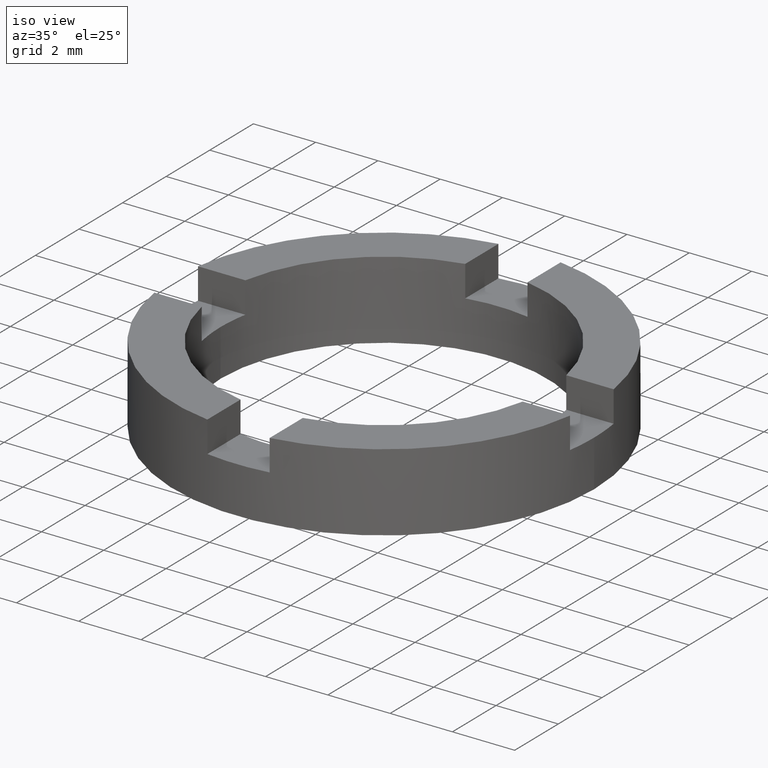
[diagram: clean part render]
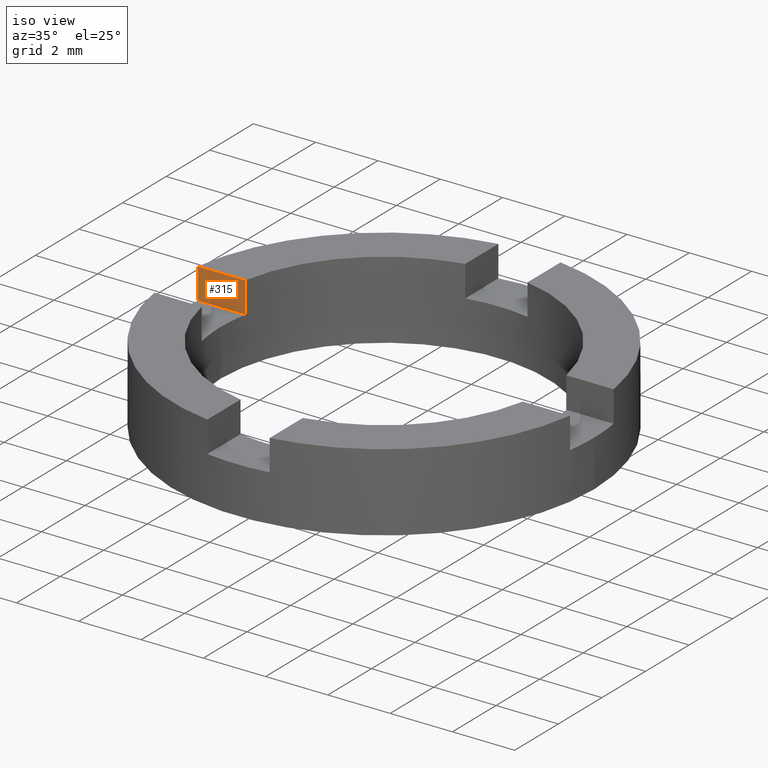
[diagram: same view with one face highlighted and labeled with its STEP entity id]
A machine part, iso view. The second image highlights one B-rep face of the part: STEP entity #315.
In plain terms, the highlighted planar face has unit normal (-0, -1, 0).
Its self-contained STEP definition (entity closure, byte-faithful):
#10 = DIRECTION ( 'NONE',  ( -0.000000000000000000, -0.000000000000000000, 1.000000000000000000 ) ) ;
#65 = ORIENTED_EDGE ( 'NONE', *, *, #496, .T. ) ;
#74 = VERTEX_POINT ( 'NONE', #554 ) ;
#84 = VECTOR ( 'NONE', #10, 1000.000000000000000 ) ;
#90 = LINE ( 'NONE', #737, #84 ) ;
#101 = VECTOR ( 'NONE', #165, 1000.000000000000000 ) ;
#103 = CARTESIAN_POINT ( 'NONE',  ( 3.758567531283077831E-15, 0.9999999999999988898, 2.500000000000000000 ) ) ;
#148 = CARTESIAN_POINT ( 'NONE',  ( -6.675514961409340309, 1.000000000000023981, 1.500000000000000000 ) ) ;
#163 = DIRECTION ( 'NONE',  ( 1.000000000000000000, -3.758567531283081775E-15, 0.000000000000000000 ) ) ;
#165 = DIRECTION ( 'NONE',  ( 1.000000000000000000, -3.758567531283081775E-15, 0.000000000000000000 ) ) ;
#171 = ORIENTED_EDGE ( 'NONE', *, *, #504, .F. ) ;
#199 = ORIENTED_EDGE ( 'NONE', *, *, #276, .T. ) ;
#210 = DIRECTION ( 'NONE',  ( -0.000000000000000000, -0.000000000000000000, 1.000000000000000000 ) ) ;
#219 = ORIENTED_EDGE ( 'NONE', *, *, #658, .F. ) ;
#221 = EDGE_LOOP ( 'NONE', ( #219, #171, #199, #65 ) ) ;
#234 = CARTESIAN_POINT ( 'NONE',  ( 3.758567531283077831E-15, 0.9999999999999988898, 1.500000000000000000 ) ) ;
#248 = CARTESIAN_POINT ( 'NONE',  ( -6.675514961409340309, 1.000000000000023981, 1.500000000000000000 ) ) ;
#276 = EDGE_CURVE ( 'NONE', #599, #383, #318, .T. ) ;
#315 = ADVANCED_FACE ( 'NONE', ( #358 ), #699, .T. ) ;
#318 = LINE ( 'NONE', #510, #572 ) ;
#356 = VECTOR ( 'NONE', #210, 1000.000000000000000 ) ;
#358 = FACE_OUTER_BOUND ( 'NONE', #221, .T. ) ;
#383 = VERTEX_POINT ( 'NONE', #661 ) ;
#452 = DIRECTION ( 'NONE',  ( 1.000000000000000000, -3.758567531283081775E-15, 0.000000000000000000 ) ) ;
#462 = DIRECTION ( 'NONE',  ( -3.758567531283081775E-15, -1.000000000000000000, 0.000000000000000000 ) ) ;
#496 = EDGE_CURVE ( 'NONE', #383, #740, #90, .T. ) ;
#504 = EDGE_CURVE ( 'NONE', #599, #74, #604, .T. ) ;
#509 = AXIS2_PLACEMENT_3D ( 'NONE', #234, #462, #452 ) ;
#510 = CARTESIAN_POINT ( 'NONE',  ( 3.758567531283077831E-15, 0.9999999999999988898, 1.500000000000000000 ) ) ;
#530 = CARTESIAN_POINT ( 'NONE',  ( -5.153882032022072401, 1.000000000000018208, 2.500000000000000000 ) ) ;
#554 = CARTESIAN_POINT ( 'NONE',  ( -6.675514961409340309, 1.000000000000023981, 2.500000000000000000 ) ) ;
#572 = VECTOR ( 'NONE', #163, 1000.000000000000000 ) ;
#599 = VERTEX_POINT ( 'NONE', #248 ) ;
#604 = LINE ( 'NONE', #148, #356 ) ;
#620 = LINE ( 'NONE', #103, #101 ) ;
#658 = EDGE_CURVE ( 'NONE', #74, #740, #620, .T. ) ;
#661 = CARTESIAN_POINT ( 'NONE',  ( -5.153882032022072401, 1.000000000000018208, 1.500000000000000000 ) ) ;
#699 = PLANE ( 'NONE',  #509 ) ;
#737 = CARTESIAN_POINT ( 'NONE',  ( -5.153882032022072401, 1.000000000000018208, 1.500000000000000000 ) ) ;
#740 = VERTEX_POINT ( 'NONE', #530 ) ;